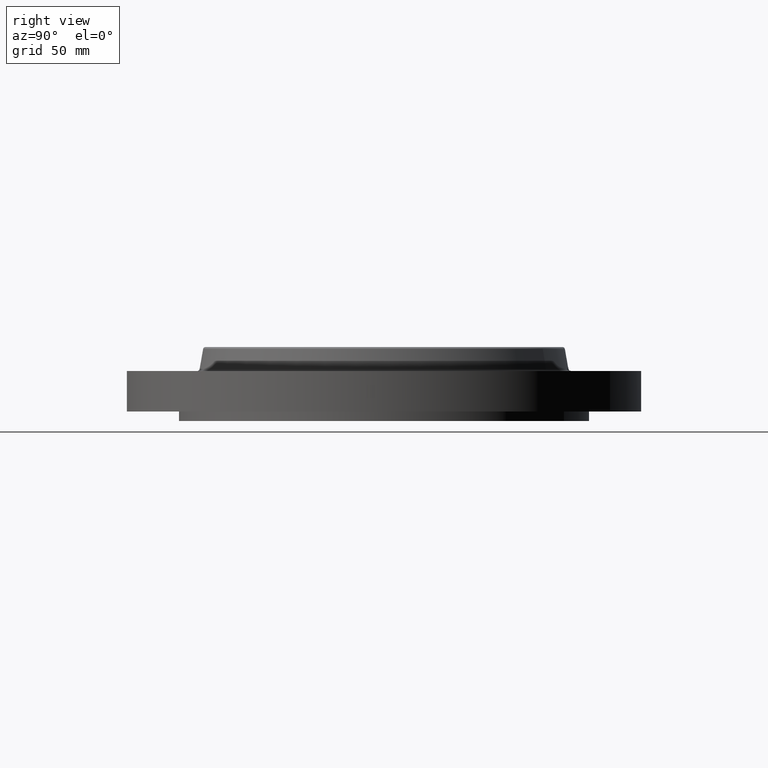
[diagram: clean part render]
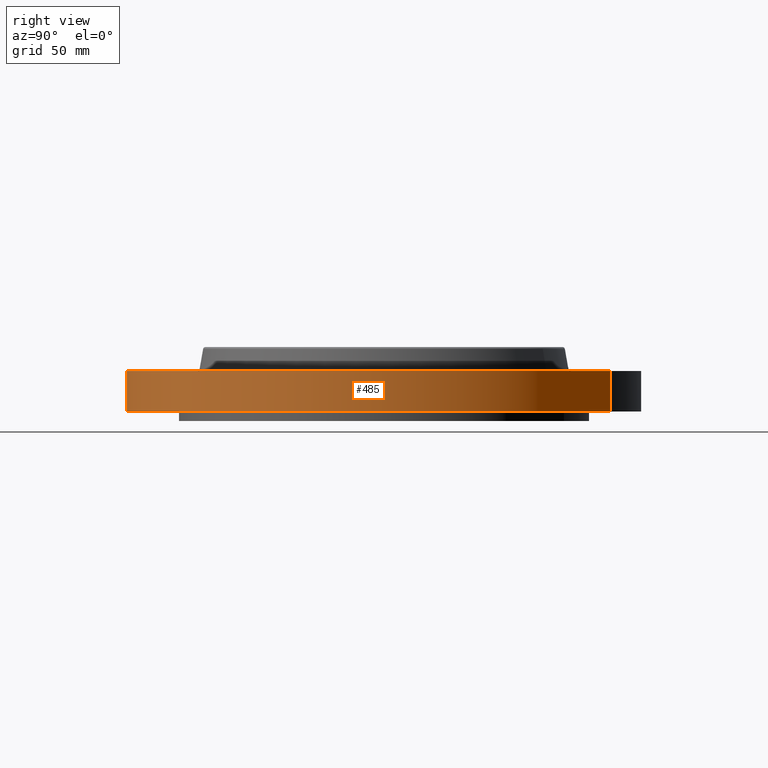
[diagram: same view with one face highlighted and labeled with its STEP entity id]
A machine part, right view. The second image highlights one B-rep face of the part: STEP entity #485.
In plain terms, the highlighted cylindrical surface (partial cylindrical patch) has radius 171.45 mm, axis along (0, 0, -1).
Its self-contained STEP definition (entity closure, byte-faithful):
#287=AXIS2_PLACEMENT_3D('Circle Axis2P3D',#285,#286,$) ;
#446=AXIS2_PLACEMENT_3D('Cylinder Axis2P3D',#443,#444,#445) ;
#476=AXIS2_PLACEMENT_3D('Circle Axis2P3D',#474,#475,$) ;
#280=CARTESIAN_POINT('Vertex',(-3.23612238559,-5.92368229278,8.39223703654E-016)) ;
#282=CARTESIAN_POINT('Vertex',(3.23612238559,5.92368229278,8.39223703654E-016)) ;
#285=CARTESIAN_POINT('Axis2P3D Location',(0.,0.,0.)) ;
#443=CARTESIAN_POINT('Axis2P3D Location',(0.,0.,0.720000000003)) ;
#448=CARTESIAN_POINT('Line Origine',(-3.23612238559,-5.92368229278,0.530000000002)) ;
#452=CARTESIAN_POINT('Vertex',(-3.23612238559,-5.92368229278,1.06)) ;
#459=CARTESIAN_POINT('Vertex',(3.23612238559,5.92368229278,1.06)) ;
#462=CARTESIAN_POINT('Line Origine',(3.23612238559,5.92368229278,0.530000000002)) ;
#474=CARTESIAN_POINT('Axis2P3D Location',(0.,0.,1.06)) ;
#286=DIRECTION('Axis2P3D Direction',(0.,0.,-0.0393700787402)) ;
#444=DIRECTION('Axis2P3D Direction',(0.,0.,-0.0393700787402)) ;
#445=DIRECTION('Axis2P3D XDirection',(0.0188750212049,0.0345504945626,0.)) ;
#449=DIRECTION('Vector Direction',(0.,0.,-0.0393700787402)) ;
#463=DIRECTION('Vector Direction',(0.,0.,-0.0393700787402)) ;
#475=DIRECTION('Axis2P3D Direction',(0.,0.,-0.0393700787402)) ;
#450=VECTOR('Line Direction',#449,0.0393700787402) ;
#464=VECTOR('Line Direction',#463,0.0393700787402) ;
#480=ORIENTED_EDGE('',*,*,#289,.F.) ;
#481=ORIENTED_EDGE('',*,*,#466,.T.) ;
#482=ORIENTED_EDGE('',*,*,#478,.T.) ;
#483=ORIENTED_EDGE('',*,*,#454,.F.) ;
#485=ADVANCED_FACE('PartBody',(#484),#447,.T.) ;
#288=CIRCLE('generated circle',#287,6.75000000003) ;
#477=CIRCLE('generated circle',#476,6.75000000003) ;
#447=CYLINDRICAL_SURFACE('generated cylinder',#446,6.75000000003) ;
#289=EDGE_CURVE('',#283,#281,#288,.T.) ;
#454=EDGE_CURVE('',#281,#453,#451,.F.) ;
#466=EDGE_CURVE('',#283,#460,#465,.F.) ;
#478=EDGE_CURVE('',#460,#453,#477,.T.) ;
#479=EDGE_LOOP('',(#480,#481,#482,#483)) ;
#484=FACE_OUTER_BOUND('',#479,.T.) ;
#451=LINE('Line',#448,#450) ;
#465=LINE('Line',#462,#464) ;
#281=VERTEX_POINT('',#280) ;
#283=VERTEX_POINT('',#282) ;
#453=VERTEX_POINT('',#452) ;
#460=VERTEX_POINT('',#459) ;